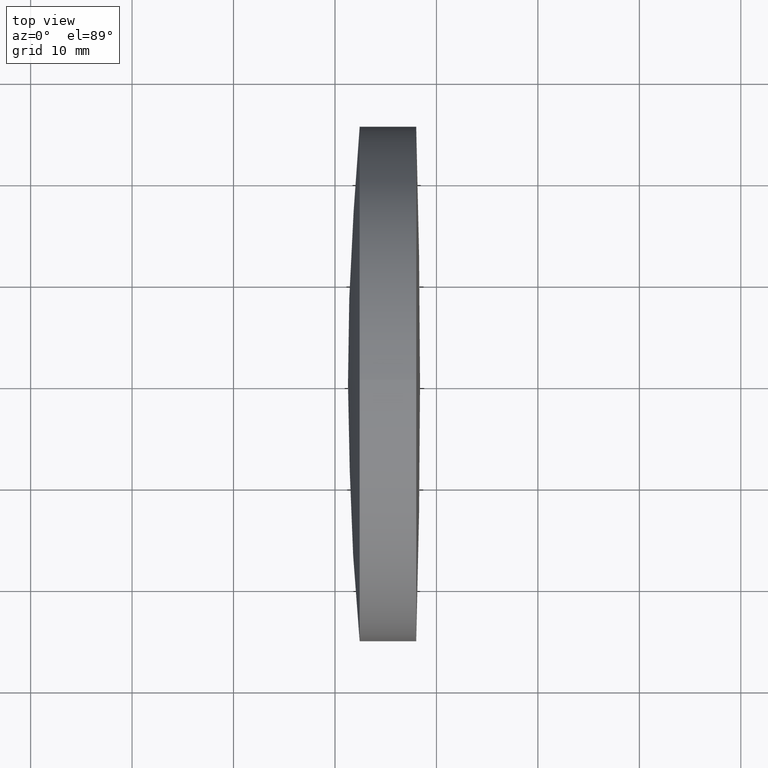
[diagram: clean part render]
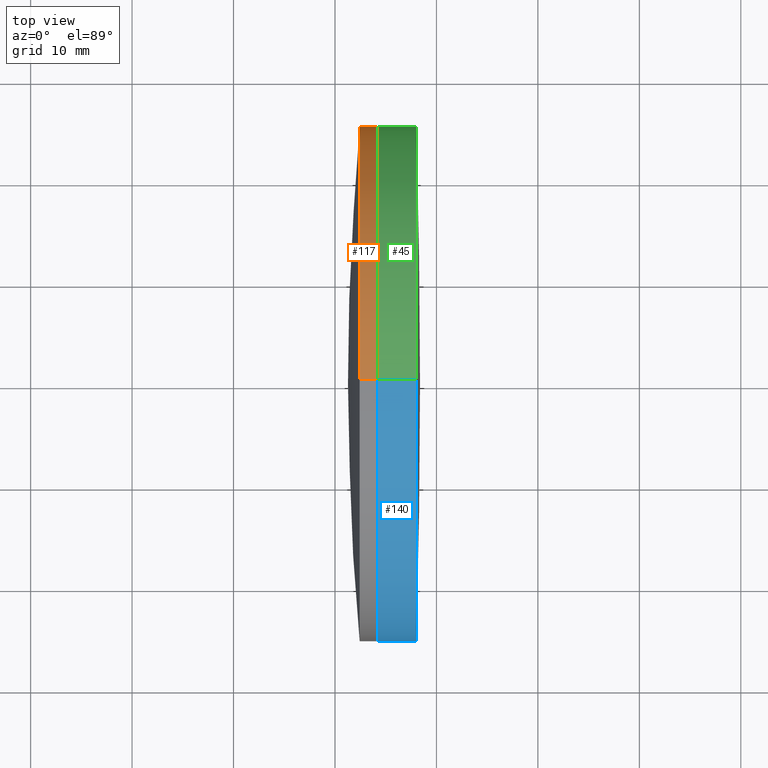
[diagram: same view with three faces highlighted in distinct colors, each labeled with its STEP entity id]
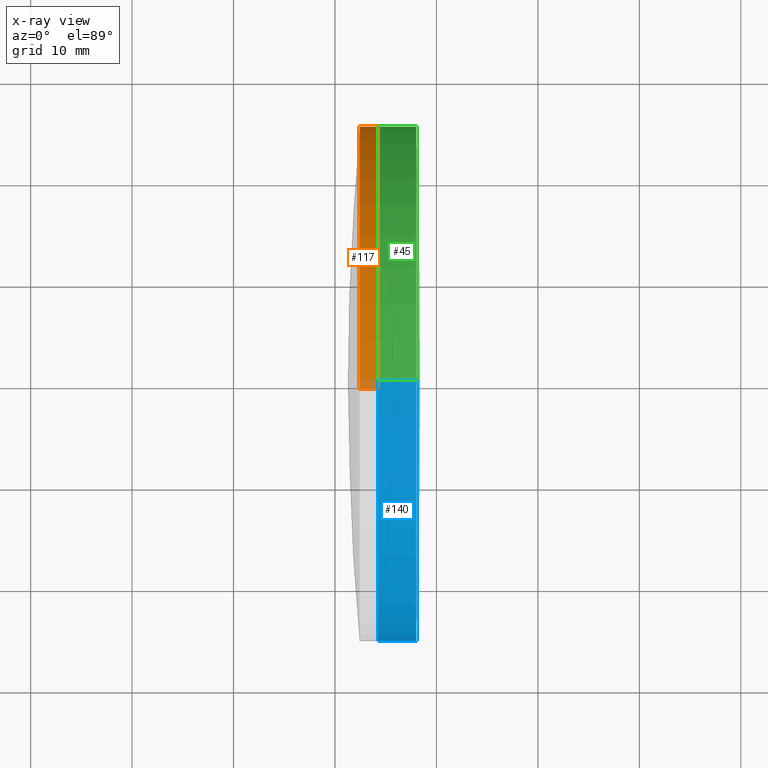
[diagram: x-ray of the same camera — body ghosted, the three highlighted faces saturated]
A machine part, top view with three faces highlighted in distinct colors.
The next image is the same camera in x-ray (body ghosted, the three faces saturated) — at least one of them is partly hidden behind the body in this view.
Their STEP definitions:

[orange] entity #117 — the highlighted cylindrical surface (partial cylindrical patch) has radius 25.4 mm, axis along (-1, -0, -0).
#8 = CIRCLE ( 'NONE', #261, 25.39999999999999500 ) ;
#83 = LINE ( 'NONE', #161, #297 ) ;
#88 = DIRECTION ( 'NONE',  ( -1.000000000000000000, -0.0000000000000000000, -0.0000000000000000000 ) ) ;
#91 = AXIS2_PLACEMENT_3D ( 'NONE', #150, #128, #257 ) ;
#95 = VERTEX_POINT ( 'NONE', #123 ) ;
#99 = CARTESIAN_POINT ( 'NONE',  ( 124.5233095260452400, 3.110602869834276500E-015, -25.39999999999999500 ) ) ;
#100 = DIRECTION ( 'NONE',  ( -1.000000000000000000, -0.0000000000000000000, -0.0000000000000000000 ) ) ;
#101 = DIRECTION ( 'NONE',  ( 0.0000000000000000000, 0.0000000000000000000, 1.000000000000000000 ) ) ;
#102 = CYLINDRICAL_SURFACE ( 'NONE', #274, 25.39999999999999500 ) ;
#106 = CIRCLE ( 'NONE', #91, 25.39999999999999500 ) ;
#117 = ADVANCED_FACE ( 'NONE', ( #196 ), #102, .T. ) ;
#123 = CARTESIAN_POINT ( 'NONE',  ( 662.4325319060842500, 3.110602869834266600E-015, -25.39999999999992000 ) ) ;
#124 = EDGE_CURVE ( 'NONE', #216, #283, #83, .T. ) ;
#128 = DIRECTION ( 'NONE',  ( -1.000000000000000000, -0.0000000000000000000, -0.0000000000000000000 ) ) ;
#131 = VERTEX_POINT ( 'NONE', #144 ) ;
#134 = ORIENTED_EDGE ( 'NONE', *, *, #249, .F. ) ;
#144 = CARTESIAN_POINT ( 'NONE',  ( 664.2238686839525600, 3.110602869834276500E-015, -25.39999999999999500 ) ) ;
#147 = DIRECTION ( 'NONE',  ( -1.000000000000000000, -0.0000000000000000000, -0.0000000000000000000 ) ) ;
#150 = CARTESIAN_POINT ( 'NONE',  ( 664.2238686839525600, 0.0000000000000000000, 0.0000000000000000000 ) ) ;
#152 = VECTOR ( 'NONE', #88, 1000.000000000000000 ) ;
#156 = CARTESIAN_POINT ( 'NONE',  ( 662.4325319060842500, 0.0000000000000000000, 0.0000000000000000000 ) ) ;
#161 = CARTESIAN_POINT ( 'NONE',  ( 124.5233095260452400, 0.0000000000000000000, 25.39999999999999500 ) ) ;
#173 = CARTESIAN_POINT ( 'NONE',  ( 124.5233095260452400, 0.0000000000000000000, 0.0000000000000000000 ) ) ;
#179 = EDGE_CURVE ( 'NONE', #216, #131, #106, .T. ) ;
#181 = ORIENTED_EDGE ( 'NONE', *, *, #245, .T. ) ;
#189 = DIRECTION ( 'NONE',  ( 0.0000000000000000000, 0.0000000000000000000, 1.000000000000000000 ) ) ;
#196 = FACE_OUTER_BOUND ( 'NONE', #271, .T. ) ;
#216 = VERTEX_POINT ( 'NONE', #258 ) ;
#225 = CARTESIAN_POINT ( 'NONE',  ( 662.4325319060842500, 0.0000000000000000000, 25.39999999999991700 ) ) ;
#245 = EDGE_CURVE ( 'NONE', #131, #95, #324, .T. ) ;
#249 = EDGE_CURVE ( 'NONE', #283, #95, #8, .T. ) ;
#257 = DIRECTION ( 'NONE',  ( 0.0000000000000000000, 0.0000000000000000000, 1.000000000000000000 ) ) ;
#258 = CARTESIAN_POINT ( 'NONE',  ( 664.2238686839525600, 0.0000000000000000000, 25.39999999999999500 ) ) ;
#261 = AXIS2_PLACEMENT_3D ( 'NONE', #156, #147, #101 ) ;
#271 = EDGE_LOOP ( 'NONE', ( #275, #181, #134, #272 ) ) ;
#272 = ORIENTED_EDGE ( 'NONE', *, *, #124, .F. ) ;
#274 = AXIS2_PLACEMENT_3D ( 'NONE', #173, #100, #189 ) ;
#275 = ORIENTED_EDGE ( 'NONE', *, *, #179, .T. ) ;
#283 = VERTEX_POINT ( 'NONE', #225 ) ;
#297 = VECTOR ( 'NONE', #301, 1000.000000000000000 ) ;
#301 = DIRECTION ( 'NONE',  ( -1.000000000000000000, -0.0000000000000000000, -0.0000000000000000000 ) ) ;
#324 = LINE ( 'NONE', #99, #152 ) ;

[blue] entity #140 — the highlighted cylindrical surface (partial cylindrical patch) has radius 25.4 mm, axis along (-1, -0, -0).
#12 = CARTESIAN_POINT ( 'NONE',  ( 668.0049474674375500, 3.110602869834279600E-015, -25.40000000000000600 ) ) ;
#29 = AXIS2_PLACEMENT_3D ( 'NONE', #82, #235, #328 ) ;
#35 = DIRECTION ( 'NONE',  ( 0.0000000000000000000, 0.0000000000000000000, 1.000000000000000000 ) ) ;
#50 = ORIENTED_EDGE ( 'NONE', *, *, #212, .T. ) ;
#58 = CYLINDRICAL_SURFACE ( 'NONE', #29, 25.40000000000003400 ) ;
#60 = DIRECTION ( 'NONE',  ( -1.000000000000000000, -0.0000000000000000000, -0.0000000000000000000 ) ) ;
#79 = CARTESIAN_POINT ( 'NONE',  ( 668.0049474674375500, 0.0000000000000000000, 0.0000000000000000000 ) ) ;
#82 = CARTESIAN_POINT ( 'NONE',  ( -0.5519199926577972300, 0.0000000000000000000, 0.0000000000000000000 ) ) ;
#89 = EDGE_LOOP ( 'NONE', ( #166, #281, #50, #201 ) ) ;
#90 = FACE_OUTER_BOUND ( 'NONE', #89, .T. ) ;
#93 = VECTOR ( 'NONE', #177, 1000.000000000000000 ) ;
#94 = EDGE_CURVE ( 'NONE', #305, #136, #341, .T. ) ;
#105 = EDGE_CURVE ( 'NONE', #305, #195, #171, .T. ) ;
#108 = AXIS2_PLACEMENT_3D ( 'NONE', #321, #194, #35 ) ;
#136 = VERTEX_POINT ( 'NONE', #227 ) ;
#140 = ADVANCED_FACE ( 'NONE', ( #90 ), #58, .T. ) ;
#148 = CIRCLE ( 'NONE', #108, 25.40000000000006600 ) ;
#165 = LINE ( 'NONE', #180, #307 ) ;
#166 = ORIENTED_EDGE ( 'NONE', *, *, #105, .F. ) ;
#171 = LINE ( 'NONE', #332, #93 ) ;
#177 = DIRECTION ( 'NONE',  ( -1.000000000000000000, -0.0000000000000000000, -0.0000000000000000000 ) ) ;
#180 = CARTESIAN_POINT ( 'NONE',  ( -0.5519199926577972300, 0.0000000000000000000, 25.40000000000003400 ) ) ;
#185 = AXIS2_PLACEMENT_3D ( 'NONE', #79, #60, #315 ) ;
#194 = DIRECTION ( 'NONE',  ( -1.000000000000000000, -0.0000000000000000000, -0.0000000000000000000 ) ) ;
#195 = VERTEX_POINT ( 'NONE', #210 ) ;
#201 = ORIENTED_EDGE ( 'NONE', *, *, #335, .F. ) ;
#210 = CARTESIAN_POINT ( 'NONE',  ( 664.2238686839525600, 3.110602869834287500E-015, -25.40000000000009100 ) ) ;
#212 = EDGE_CURVE ( 'NONE', #136, #333, #165, .T. ) ;
#222 = CARTESIAN_POINT ( 'NONE',  ( 664.2238686839525600, 0.0000000000000000000, 25.40000000000008700 ) ) ;
#227 = CARTESIAN_POINT ( 'NONE',  ( 668.0049474674375500, 0.0000000000000000000, 25.40000000000000600 ) ) ;
#235 = DIRECTION ( 'NONE',  ( -1.000000000000000000, -0.0000000000000000000, -0.0000000000000000000 ) ) ;
#262 = DIRECTION ( 'NONE',  ( -1.000000000000000000, -0.0000000000000000000, -0.0000000000000000000 ) ) ;
#281 = ORIENTED_EDGE ( 'NONE', *, *, #94, .T. ) ;
#305 = VERTEX_POINT ( 'NONE', #12 ) ;
#307 = VECTOR ( 'NONE', #262, 1000.000000000000000 ) ;
#315 = DIRECTION ( 'NONE',  ( 0.0000000000000000000, 0.0000000000000000000, 1.000000000000000000 ) ) ;
#321 = CARTESIAN_POINT ( 'NONE',  ( 664.2238686839525600, 0.0000000000000000000, 0.0000000000000000000 ) ) ;
#328 = DIRECTION ( 'NONE',  ( 0.0000000000000000000, 0.0000000000000000000, 1.000000000000000000 ) ) ;
#332 = CARTESIAN_POINT ( 'NONE',  ( -0.5519199926577972300, 3.110602869834281200E-015, -25.40000000000003400 ) ) ;
#333 = VERTEX_POINT ( 'NONE', #222 ) ;
#335 = EDGE_CURVE ( 'NONE', #195, #333, #148, .T. ) ;
#341 = CIRCLE ( 'NONE', #185, 25.40000000000000600 ) ;

[green] entity #45 — the highlighted cylindrical surface (partial cylindrical patch) has radius 25.4 mm, axis along (-1, -0, -0).
#12 = CARTESIAN_POINT ( 'NONE',  ( 668.0049474674375500, 3.110602869834279600E-015, -25.40000000000000600 ) ) ;
#15 = ORIENTED_EDGE ( 'NONE', *, *, #212, .F. ) ;
#26 = DIRECTION ( 'NONE',  ( 0.0000000000000000000, 0.0000000000000000000, 1.000000000000000000 ) ) ;
#34 = DIRECTION ( 'NONE',  ( 0.0000000000000000000, 0.0000000000000000000, 1.000000000000000000 ) ) ;
#36 = EDGE_CURVE ( 'NONE', #136, #305, #87, .T. ) ;
#44 = AXIS2_PLACEMENT_3D ( 'NONE', #75, #299, #26 ) ;
#45 = ADVANCED_FACE ( 'NONE', ( #57 ), #200, .T. ) ;
#57 = FACE_OUTER_BOUND ( 'NONE', #276, .T. ) ;
#75 = CARTESIAN_POINT ( 'NONE',  ( -0.5519199926577972300, 0.0000000000000000000, 0.0000000000000000000 ) ) ;
#78 = AXIS2_PLACEMENT_3D ( 'NONE', #344, #292, #112 ) ;
#80 = ORIENTED_EDGE ( 'NONE', *, *, #36, .T. ) ;
#87 = CIRCLE ( 'NONE', #239, 25.40000000000000600 ) ;
#93 = VECTOR ( 'NONE', #177, 1000.000000000000000 ) ;
#105 = EDGE_CURVE ( 'NONE', #305, #195, #171, .T. ) ;
#112 = DIRECTION ( 'NONE',  ( 0.0000000000000000000, 0.0000000000000000000, 1.000000000000000000 ) ) ;
#130 = CARTESIAN_POINT ( 'NONE',  ( 668.0049474674375500, 0.0000000000000000000, 0.0000000000000000000 ) ) ;
#136 = VERTEX_POINT ( 'NONE', #227 ) ;
#137 = ORIENTED_EDGE ( 'NONE', *, *, #105, .T. ) ;
#165 = LINE ( 'NONE', #180, #307 ) ;
#171 = LINE ( 'NONE', #332, #93 ) ;
#177 = DIRECTION ( 'NONE',  ( -1.000000000000000000, -0.0000000000000000000, -0.0000000000000000000 ) ) ;
#180 = CARTESIAN_POINT ( 'NONE',  ( -0.5519199926577972300, 0.0000000000000000000, 25.40000000000003400 ) ) ;
#195 = VERTEX_POINT ( 'NONE', #210 ) ;
#200 = CYLINDRICAL_SURFACE ( 'NONE', #44, 25.40000000000003400 ) ;
#208 = DIRECTION ( 'NONE',  ( -1.000000000000000000, -0.0000000000000000000, -0.0000000000000000000 ) ) ;
#210 = CARTESIAN_POINT ( 'NONE',  ( 664.2238686839525600, 3.110602869834287500E-015, -25.40000000000009100 ) ) ;
#212 = EDGE_CURVE ( 'NONE', #136, #333, #165, .T. ) ;
#222 = CARTESIAN_POINT ( 'NONE',  ( 664.2238686839525600, 0.0000000000000000000, 25.40000000000008700 ) ) ;
#227 = CARTESIAN_POINT ( 'NONE',  ( 668.0049474674375500, 0.0000000000000000000, 25.40000000000000600 ) ) ;
#239 = AXIS2_PLACEMENT_3D ( 'NONE', #130, #208, #34 ) ;
#248 = ORIENTED_EDGE ( 'NONE', *, *, #256, .F. ) ;
#256 = EDGE_CURVE ( 'NONE', #333, #195, #284, .T. ) ;
#262 = DIRECTION ( 'NONE',  ( -1.000000000000000000, -0.0000000000000000000, -0.0000000000000000000 ) ) ;
#276 = EDGE_LOOP ( 'NONE', ( #80, #137, #248, #15 ) ) ;
#284 = CIRCLE ( 'NONE', #78, 25.40000000000006600 ) ;
#292 = DIRECTION ( 'NONE',  ( -1.000000000000000000, -0.0000000000000000000, -0.0000000000000000000 ) ) ;
#299 = DIRECTION ( 'NONE',  ( -1.000000000000000000, -0.0000000000000000000, -0.0000000000000000000 ) ) ;
#305 = VERTEX_POINT ( 'NONE', #12 ) ;
#307 = VECTOR ( 'NONE', #262, 1000.000000000000000 ) ;
#332 = CARTESIAN_POINT ( 'NONE',  ( -0.5519199926577972300, 3.110602869834281200E-015, -25.40000000000003400 ) ) ;
#333 = VERTEX_POINT ( 'NONE', #222 ) ;
#344 = CARTESIAN_POINT ( 'NONE',  ( 664.2238686839525600, 0.0000000000000000000, 0.0000000000000000000 ) ) ;